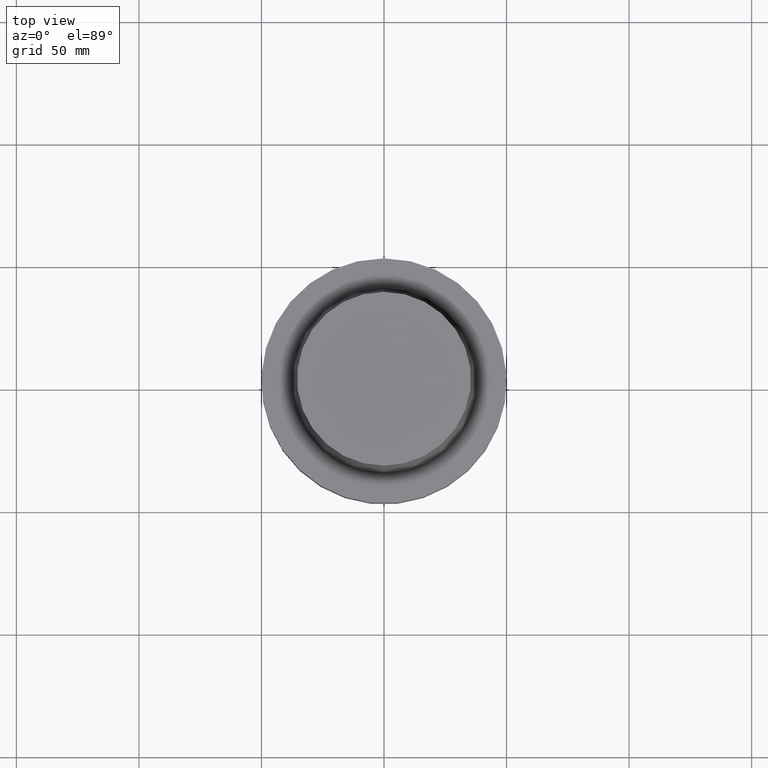
[diagram: clean part render]
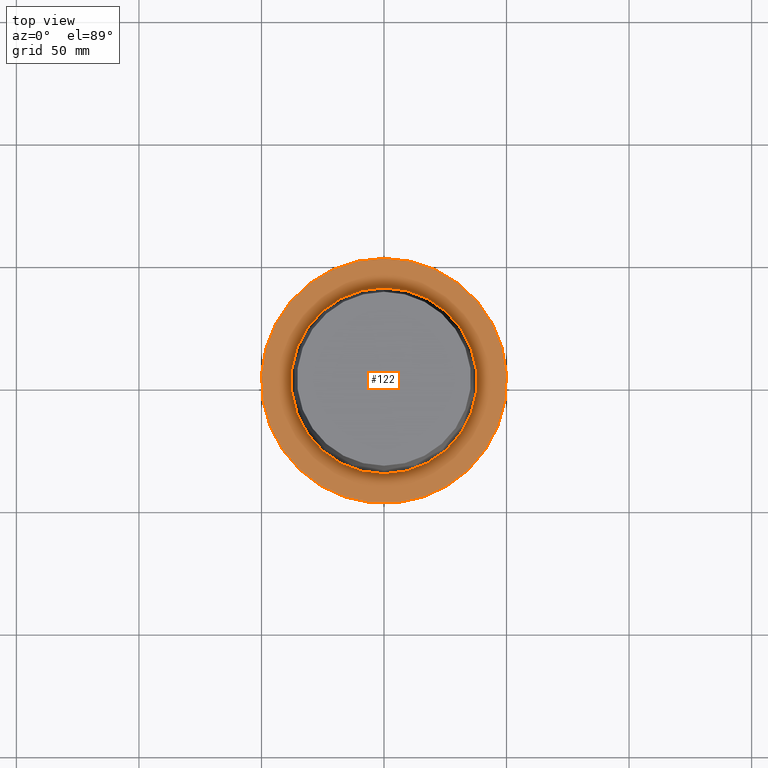
[diagram: same view with one face highlighted and labeled with its STEP entity id]
A machine part, top view. The second image highlights one B-rep face of the part: STEP entity #122.
In plain terms, the highlighted planar face has unit normal (-0, -0, 1).
Its self-contained STEP definition (entity closure, byte-faithful):
#58=EDGE_CURVE('Unnamed[1]',#160,#160,#161,.T.);
#96=EDGE_CURVE('Unnamed[1]',#219,#219,#220,.T.);
#122=ADVANCED_FACE('Unnamed[1]',(#258,#259),#260,.T.);
#160=VERTEX_POINT('',#301);
#161=CIRCLE('',#302,37.9);
#219=VERTEX_POINT('',#375);
#220=CIRCLE('',#376,50.0);
#258=FACE_OUTER_BOUND('',#423,.T.);
#259=FACE_BOUND('',#424,.T.);
#260=PLANE('',#425);
#301=CARTESIAN_POINT('',(-4.67153567310568E-031,37.9,4.64141136876847E-015));
#302=AXIS2_PLACEMENT_3D('',#467,#468,#469);
#375=CARTESIAN_POINT('',(-6.16297582203915E-031,50.0,6.12323399573676E-015));
#376=AXIS2_PLACEMENT_3D('',#534,#535,#536);
#423=EDGE_LOOP('',(#575));
#424=EDGE_LOOP('',(#576));
#425=AXIS2_PLACEMENT_3D('',#577,#578,#579);
#467=CARTESIAN_POINT('',(0.0,0.0,0.0));
#468=DIRECTION('',(6.12323399573677E-017,1.22464679914735E-016,-1.0));
#469=DIRECTION('',(-1.23259516440783E-032,1.0,1.22464679914735E-016));
#534=CARTESIAN_POINT('',(0.0,0.0,0.0));
#535=DIRECTION('',(6.12323399573677E-017,1.22464679914735E-016,-1.0));
#536=DIRECTION('',(-1.23259516440783E-032,1.0,1.22464679914735E-016));
#575=ORIENTED_EDGE('',*,*,#96,.F.);
#576=ORIENTED_EDGE('',*,*,#58,.T.);
#577=CARTESIAN_POINT('',(-5.41725574757242E-031,43.95,5.38232268225262E-015));
#578=DIRECTION('',(-6.12323399573677E-017,-1.22464679914735E-016,1.0));
#579=DIRECTION('',(1.23259516440783E-032,-1.0,-1.22464679914735E-016));